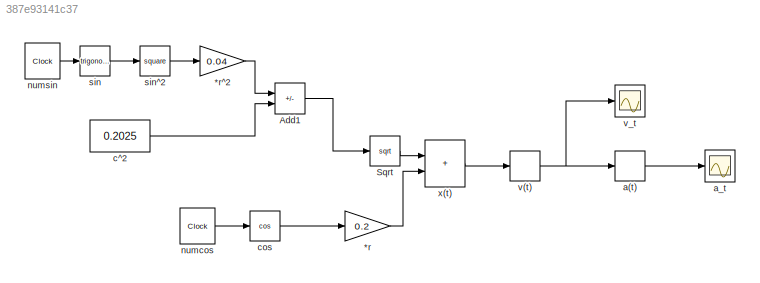
MODEL slx_387e93141c37
KIND model
CONFIG AbsTol = auto
CONFIG EnableMultiTasking = off
CONFIG FixedStep = auto
CONFIG MaxStep = auto
CONFIG MinStep = auto
CONFIG RelTol = 1e-3
CONFIG SampleTimeConstraint = Unconstrained
CONFIG SolverName = VariableStepAuto
CONFIG StartTime = 0.0
CONFIG StopTime = 10
BLOCK [Gain] *r
  Gain = 0.2
BLOCK [Gain] *r^2
  Gain = 0.04
BLOCK [Sum] Add1
  IconShape = rectangular
  Inputs = -+
BLOCK [Sqrt] Sqrt
BLOCK [Derivative] a(t)
BLOCK [Scope] a_t
  Floating = off
  NumInputPorts = 1
  ScopeSpecificationString = Simulink.scopes.TimeScopeBlockCfg('CurrentConfiguration', extmgr.ConfigurationSet(extmgr.Configuration('Core','General UI',true,'FigureColor',[1 1 1]),extmgr.Configuration('Core','Source UI',true),extmgr.Configuration('Sources','WiredSimulink',true,'DataLoggingVariableName','ScopeData1'),extmgr.Configuration('Visuals','Time Domain',true,'PlotType','Line','SerializedDisplays',{struct('MinYLimReal',...<+1568ch>
BLOCK [Constant] c^2
  Value = 0.2025
BLOCK [Trigonometry] cos
  Operator = cos
BLOCK [Clock] numcos
BLOCK [Clock] numsin
BLOCK [Trigonometry] sin
BLOCK [Math] sin^2
  Operator = square
BLOCK [Derivative] v(t)
BLOCK [Scope] v_t
  Floating = off
  NumInputPorts = 1
  ScopeSpecificationString = Simulink.scopes.TimeScopeBlockCfg('CurrentConfiguration', extmgr.ConfigurationSet(extmgr.Configuration('Core','General UI',true,'FigureColor',[1 1 1]),extmgr.Configuration('Core','Source UI',true),extmgr.Configuration('Sources','WiredSimulink',true),extmgr.Configuration('Visuals','Time Domain',true,'SerializedDisplays',{struct('MinYLimReal','-0.27354','MaxYLimReal','0.27343','YLabelReal','','MinYL...<+1606ch>
BLOCK [Sum] x(t)
  IconShape = rectangular
LINE *r:1 -> x(t):2
LINE *r^2:1 -> Add1:1
LINE Add1:1 -> Sqrt:1
LINE Sqrt:1 -> x(t):1
LINE a(t):1 -> a_t:1
LINE c^2:1 -> Add1:2
LINE cos:1 -> *r:1
LINE numcos:1 -> cos:1
LINE numsin:1 -> sin:1
LINE sin:1 -> sin^2:1
LINE sin^2:1 -> *r^2:1
NET v(t):1 -> a(t):1, v_t:1
LINE x(t):1 -> v(t):1
note: NET lines group one-source signal fan-out (src -> all destinations, sorted); 1:1 wires keep LINE
